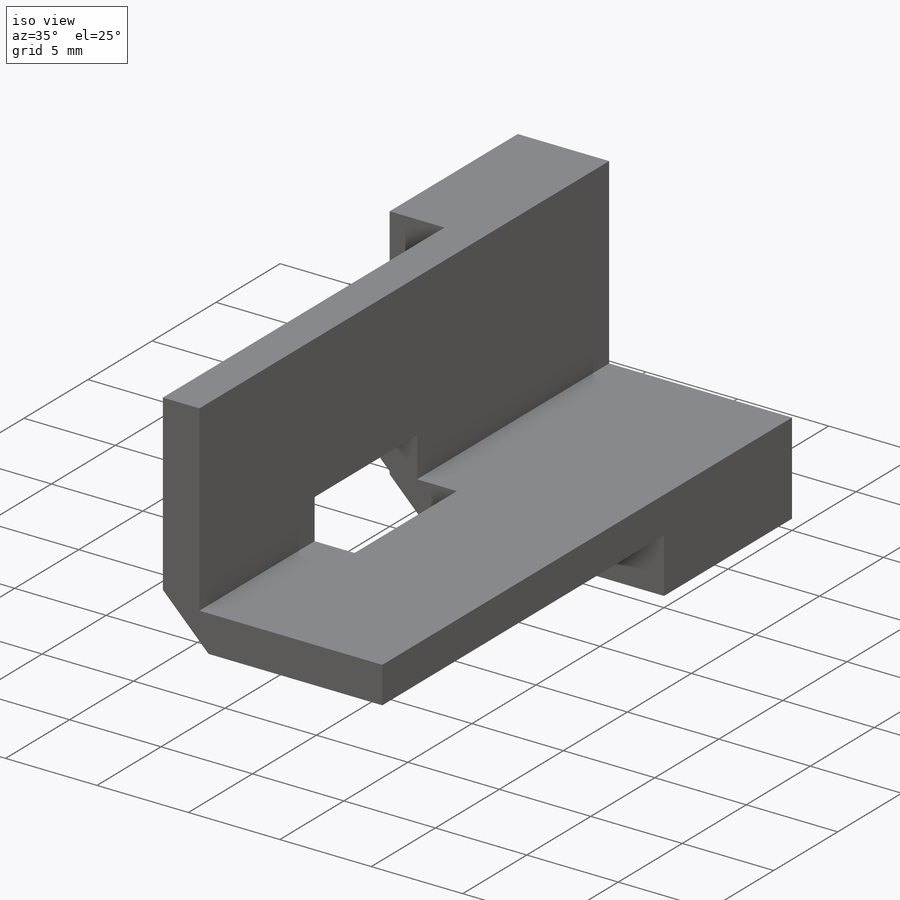
[diagram: iso view]
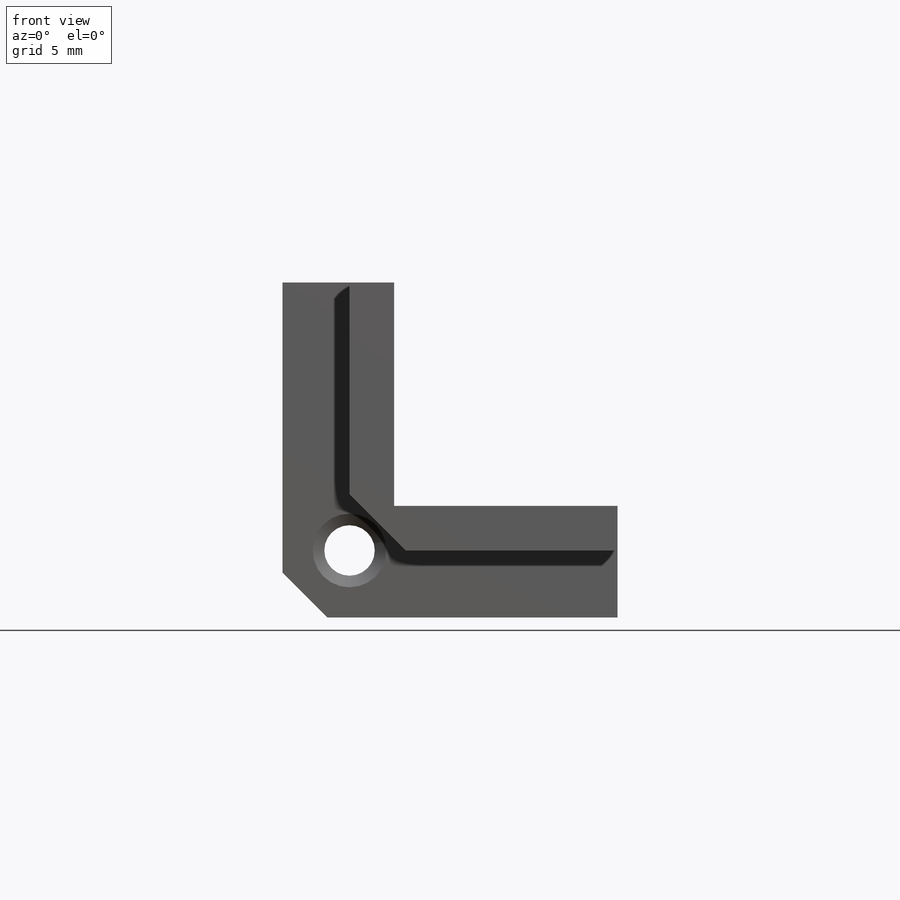
[diagram: front view]
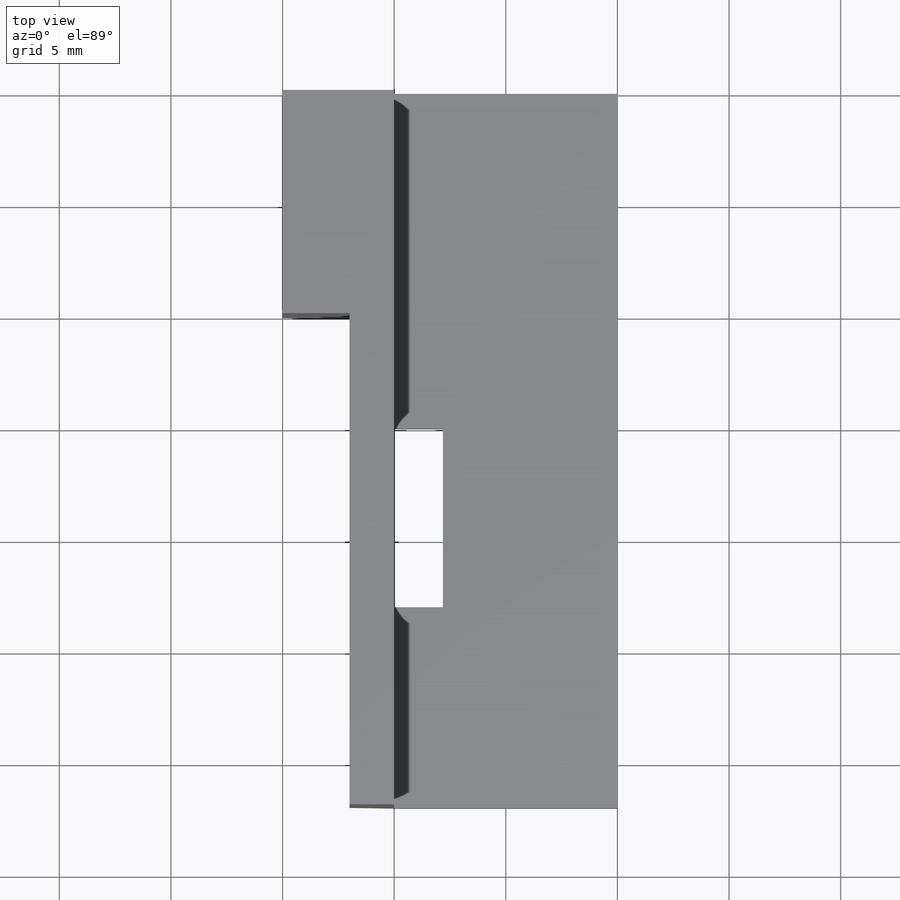
[diagram: top view]
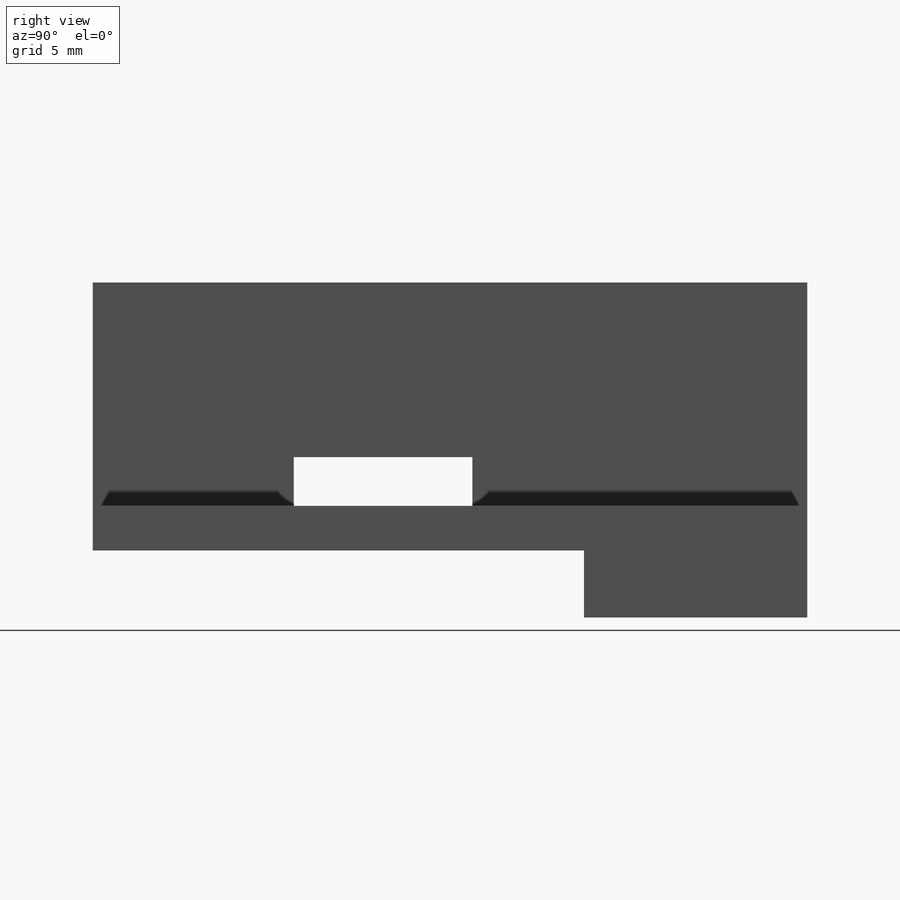
[diagram: right view]
SOLIDWORKS PART (.sldprt)
format: sldprt  version: not decoded by parser v0  size: 210,944 bytes
history: native  units: mm
features: sketch x5, plane x3, chamfer x2, cut_extrude x2, material x1, extrude x1, hole x1 (+13 scaffold rows collapsed)
feature tree (28):
  scaffold x13  (default folders/planes/origin — collapsed)
  material  "Материал <не указан>"
  plane  "Спереди"
  plane  "Сверху"
  plane  "Справа"
  sketch  "Эскиз1"  dims[D2=15.0mm D1=5.0mm]
  extrude  "Бобышка-Вытянуть1"  Depth=32mm
  chamfer  "Фаска1"  Distance=2mm Angle=45deg
  sketch  "Эскиз2"  dims[D1=2.0mm D2=2.0mm]
  cut_extrude  "Вырез-Вытянуть1"  Depth=10mm
  sketch  "Эскиз3"  dims[D1=5.0mm D2=14.0mm D3=8.0mm D4=14.0mm]
  cut_extrude  "Вырез-Вытянуть2"  Depth=7.2mm
  chamfer  "Фаска2"  Distance=2.5mm Angle=45deg
  hole  "Отверстие обработанное метчиком #4-401"  [1 undecoded]
  sketch  "Эскиз5"  dims[D1=2.0mm D2=2.0mm]
  sketch  "Эскиз4"  dims[hole-wizard template sketch: 47 standard entries collapsed; hole parameters kept: c15.Глубина проходного сверла=10.0mm c15.Диаметр передней зенковки=3.302mm c15.D4=~3.666174mm c15.Угол передней зенковки=110.0deg c15.Диаметр задней зенковки=3.302mm c15.D6=~9.919017mm c15.Угол задней зенковки=110.0deg]
decode coverage: 10 of 11 modeling features carry decoded parameters
note: ~ marks probable driven/reference dimensions
note: 1 parameter value undecoded
note: suppression state not decoded; provenance and decode notes live in map.json
